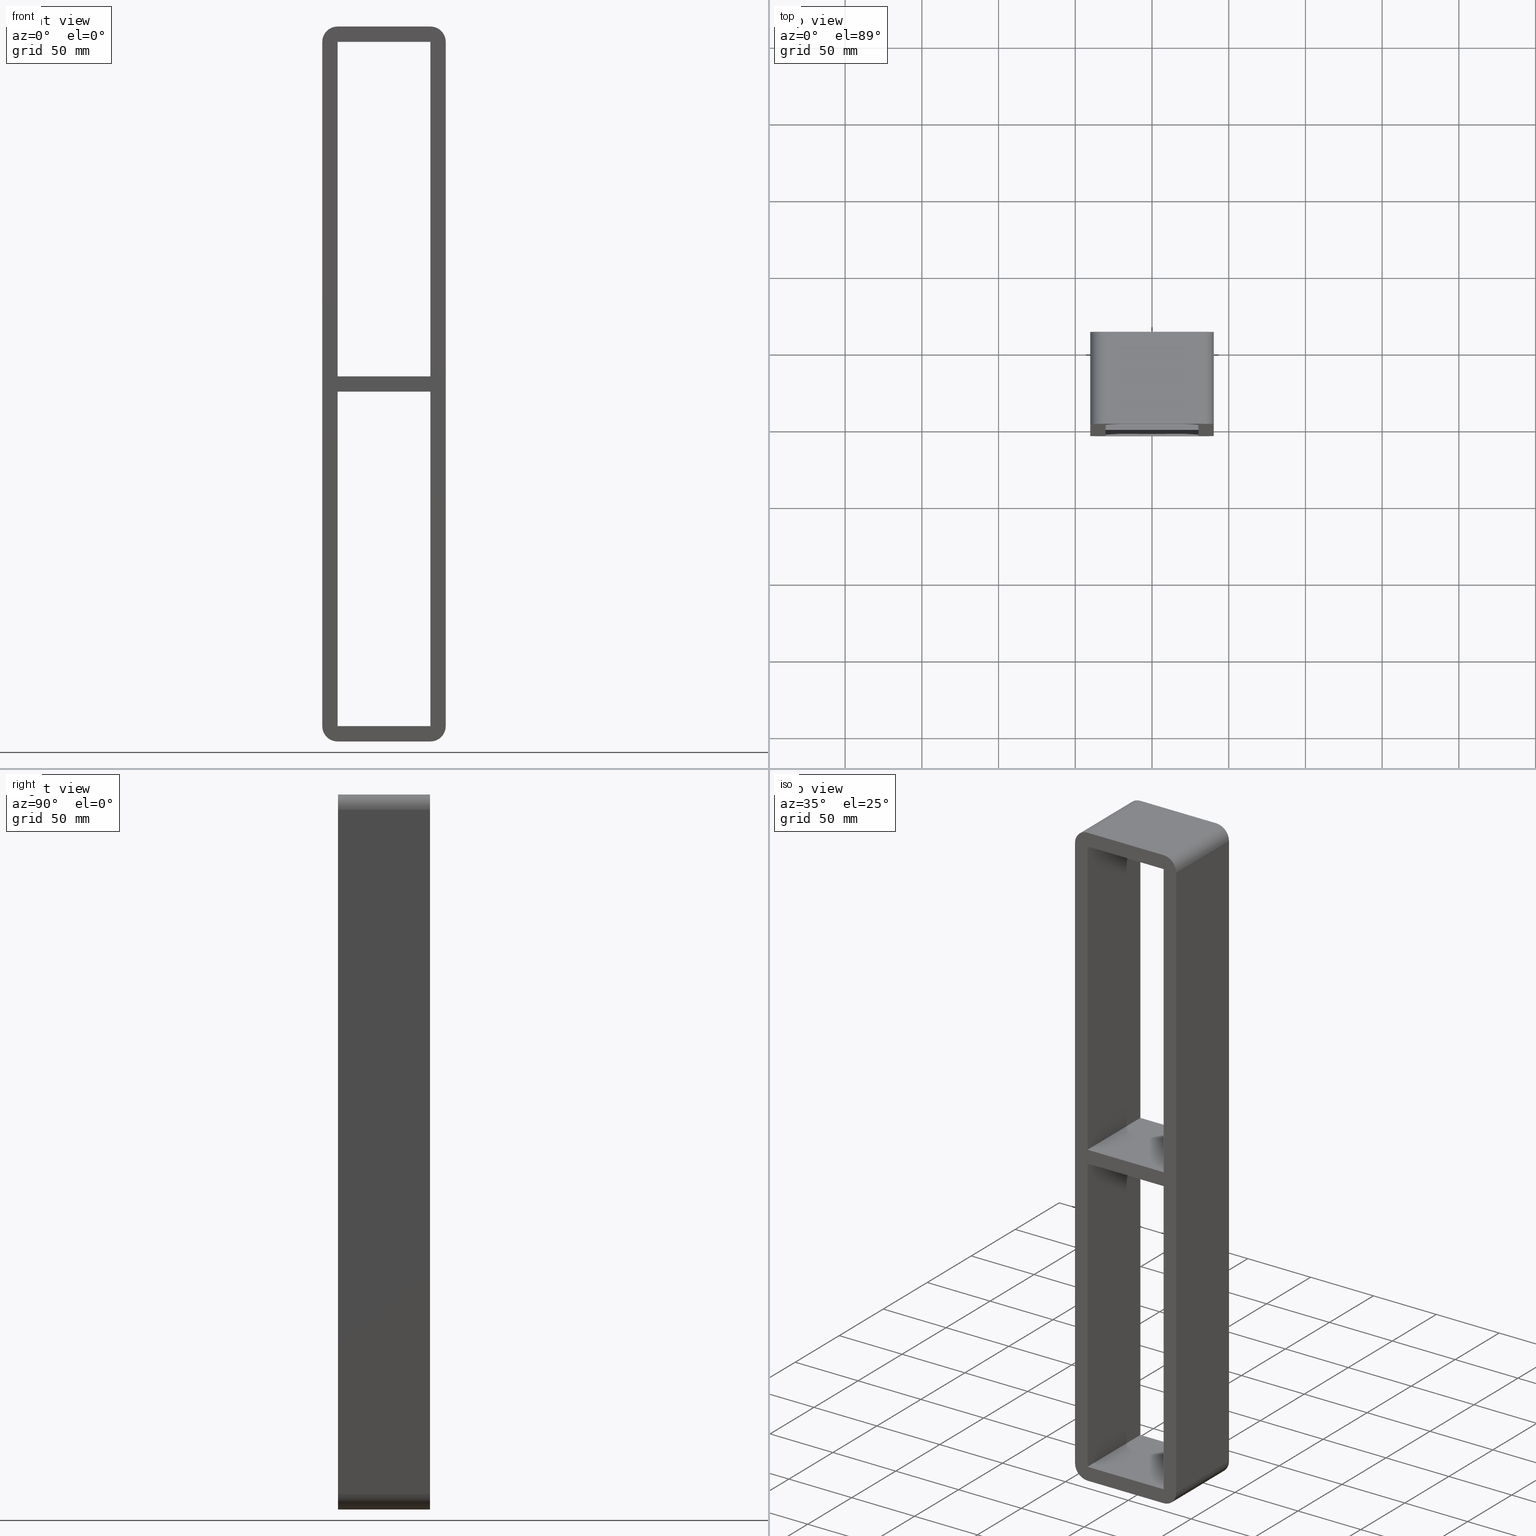
[diagram: canonical four-view strip — front | top / right | iso, engineering-drawing reading convention]
A machine part, canonical four-view strip (front | top / right | iso — engineering-drawing reading convention). The complete STEP part file that produces these views, byte-faithful:
ISO-10303-21;
HEADER;
/****************************************************************
 * Generated by software with PDElib inside                    *
 * PDElib Version v51a, created Wed 11/30/2011                  *
 * ITI Transcendata (http://www.transcendata.com/)              *
 ****************************************************************/
FILE_DESCRIPTION((''),'2;1');
FILE_NAME('C:\\RoxtecConfigurator\\CreatedFiles\\STEP\\S5+5X1.stp','2013-06-28T14:13:56',(''),(''),'Autodesk Inventor 2013','Autodesk Inventor 2013','');
FILE_SCHEMA(('AUTOMOTIVE_DESIGN { 1 0 10303 214 1 1 1 1 }'));
ENDSEC;
DATA;
#5=APPLICATION_CONTEXT('automotive design');
#6=APPLICATION_PROTOCOL_DEFINITION('International Standard','automotive_design',2001,#5);
#7=PRODUCT_CONTEXT('',#5,'mechanical');
#8=PRODUCT('roxtec S_SF_G','roxtec S_SF_G',$,(#7));
#9=PRODUCT_RELATED_PRODUCT_CATEGORY('part',$,(#8));
#10=PRODUCT_DEFINITION_FORMATION('',$,#8);
#11=PRODUCT_DEFINITION_CONTEXT('part definition',#5,'design');
#12=PRODUCT_DEFINITION('',$,#10,#11);
#18=(NAMED_UNIT(*)PLANE_ANGLE_UNIT()SI_UNIT($,.RADIAN.));
#19=DIMENSIONAL_EXPONENTS(0.0,0.0,0.0,0.0,0.0,0.0,0.0);
#20=PLANE_ANGLE_MEASURE_WITH_UNIT(PLANE_ANGLE_MEASURE(0.0174532925),#18);
#24=(CONVERSION_BASED_UNIT('DEGREE',#20)NAMED_UNIT(#19)PLANE_ANGLE_UNIT());
#28=(NAMED_UNIT(*)SI_UNIT($,.STERADIAN.)SOLID_ANGLE_UNIT());
#32=(LENGTH_UNIT()NAMED_UNIT(*)SI_UNIT(.MILLI.,.METRE.));
#34=UNCERTAINTY_MEASURE_WITH_UNIT(LENGTH_MEASURE(0.01),#32,'DISTANCE_ACCURACY_VALUE','');
#36=(GEOMETRIC_REPRESENTATION_CONTEXT(3)GLOBAL_UNCERTAINTY_ASSIGNED_CONTEXT((#34))GLOBAL_UNIT_ASSIGNED_CONTEXT((#24,#28,#32))REPRESENTATION_CONTEXT('None','None'));
#37=AXIS2_PLACEMENT_3D('',#38,#39,#40);
#38=CARTESIAN_POINT('',(0.0,0.0,0.0));
#39=DIRECTION('',(0.0,0.0,1.0));
#40=DIRECTION('',(1.0,0.0,0.0));
#41=SHAPE_REPRESENTATION('',(#37),#36);
#42=PRODUCT_DEFINITION_SHAPE('','',#12);
#43=SHAPE_DEFINITION_REPRESENTATION(#42,#41);
#49=(NAMED_UNIT(*)PLANE_ANGLE_UNIT()SI_UNIT($,.RADIAN.));
#50=DIMENSIONAL_EXPONENTS(0.0,0.0,0.0,0.0,0.0,0.0,0.0);
#51=PLANE_ANGLE_MEASURE_WITH_UNIT(PLANE_ANGLE_MEASURE(0.0174532925),#49);
#55=(CONVERSION_BASED_UNIT('DEGREE',#51)NAMED_UNIT(#50)PLANE_ANGLE_UNIT());
#59=(NAMED_UNIT(*)SI_UNIT($,.STERADIAN.)SOLID_ANGLE_UNIT());
#63=(LENGTH_UNIT()NAMED_UNIT(*)SI_UNIT(.MILLI.,.METRE.));
#65=UNCERTAINTY_MEASURE_WITH_UNIT(LENGTH_MEASURE(0.000001),#63,'DISTANCE_ACCURACY_VALUE','');
#67=(GEOMETRIC_REPRESENTATION_CONTEXT(3)GLOBAL_UNCERTAINTY_ASSIGNED_CONTEXT((#65))GLOBAL_UNIT_ASSIGNED_CONTEXT((#55,#59,#63))REPRESENTATION_CONTEXT('','3D'));
#68=CARTESIAN_POINT('',(30.249999999996362,-3.0,-5.000000000009433));
#69=DIRECTION('',(0.0,0.0,-1.0));
#70=DIRECTION('',(-1.0,0.0,0.0));
#71=AXIS2_PLACEMENT_3D('',#68,#69,#70);
#72=PLANE('',#71);
#73=CARTESIAN_POINT('',(30.249999999996362,-3.0,-5.000000000009433));
#74=VERTEX_POINT('',#73);
#75=CARTESIAN_POINT('',(-30.249999999999687,-3.0,-5.000000000009379));
#76=VERTEX_POINT('',#75);
#77=CARTESIAN_POINT('',(30.249999999996362,-3.0,-5.000000000009433));
#78=DIRECTION('',(-1.0,0.0,0.0));
#79=VECTOR('',#78,60.499999999996049);
#80=LINE('',#77,#79);
#81=EDGE_CURVE('',#74,#76,#80,.T.);
#82=ORIENTED_EDGE('',*,*,#81,.T.);
#83=CARTESIAN_POINT('',(-30.249999999999687,57.0,-5.000000000009379));
#84=VERTEX_POINT('',#83);
#85=CARTESIAN_POINT('',(-30.250000000000004,57.000000000000007,-5.000000000009387));
#86=DIRECTION('',(0.0,-1.0,0.0));
#87=VECTOR('',#86,60.000000000000007);
#88=LINE('',#85,#87);
#89=EDGE_CURVE('',#84,#76,#88,.T.);
#90=ORIENTED_EDGE('',*,*,#89,.F.);
#91=CARTESIAN_POINT('',(30.249999999996362,57.0,-5.000000000009433));
#92=VERTEX_POINT('',#91);
#93=CARTESIAN_POINT('',(30.249999999996362,57.0,-5.000000000009433));
#94=DIRECTION('',(-1.0,0.0,0.0));
#95=VECTOR('',#94,60.499999999996049);
#96=LINE('',#93,#95);
#97=EDGE_CURVE('',#92,#84,#96,.T.);
#98=ORIENTED_EDGE('',*,*,#97,.F.);
#99=CARTESIAN_POINT('',(30.250000000000004,-3.0,-5.00000000000945));
#100=DIRECTION('',(0.0,1.0,0.0));
#101=VECTOR('',#100,60.000000000000007);
#102=LINE('',#99,#101);
#103=EDGE_CURVE('',#74,#92,#102,.T.);
#104=ORIENTED_EDGE('',*,*,#103,.F.);
#105=EDGE_LOOP('',(#82,#90,#98,#104));
#106=FACE_OUTER_BOUND('',#105,.T.);
#107=ADVANCED_FACE('',(#106),#72,.T.);
#108=CARTESIAN_POINT('',(-30.249999999999694,-3.0,5.0));
#109=DIRECTION('',(0.0,0.0,1.0));
#110=DIRECTION('',(1.0,0.0,0.0));
#111=AXIS2_PLACEMENT_3D('',#108,#109,#110);
#112=PLANE('',#111);
#113=CARTESIAN_POINT('',(-30.249999999999694,-3.0,5.0));
#114=VERTEX_POINT('',#113);
#115=CARTESIAN_POINT('',(30.249999999999897,-3.0,5.0));
#116=VERTEX_POINT('',#115);
#117=CARTESIAN_POINT('',(-30.249999999999694,-3.0,5.0));
#118=DIRECTION('',(1.0,0.0,0.0));
#119=VECTOR('',#118,60.499999999999588);
#120=LINE('',#117,#119);
#121=EDGE_CURVE('',#114,#116,#120,.T.);
#122=ORIENTED_EDGE('',*,*,#121,.T.);
#123=CARTESIAN_POINT('',(30.249999999999897,57.0,5.0));
#124=VERTEX_POINT('',#123);
#125=CARTESIAN_POINT('',(30.250000000000004,57.000000000000007,5.0));
#126=DIRECTION('',(0.0,-1.0,0.0));
#127=VECTOR('',#126,60.000000000000007);
#128=LINE('',#125,#127);
#129=EDGE_CURVE('',#124,#116,#128,.T.);
#130=ORIENTED_EDGE('',*,*,#129,.F.);
#131=CARTESIAN_POINT('',(-30.249999999999694,57.0,5.0));
#132=VERTEX_POINT('',#131);
#133=CARTESIAN_POINT('',(-30.249999999999694,57.0,5.0));
#134=DIRECTION('',(1.0,0.0,0.0));
#135=VECTOR('',#134,60.499999999999588);
#136=LINE('',#133,#135);
#137=EDGE_CURVE('',#132,#124,#136,.T.);
#138=ORIENTED_EDGE('',*,*,#137,.F.);
#139=CARTESIAN_POINT('',(-30.250000000000004,-3.0,5.0));
#140=DIRECTION('',(0.0,1.0,0.0));
#141=VECTOR('',#140,60.000000000000007);
#142=LINE('',#139,#141);
#143=EDGE_CURVE('',#114,#132,#142,.T.);
#144=ORIENTED_EDGE('',*,*,#143,.F.);
#145=EDGE_LOOP('',(#122,#130,#138,#144));
#146=FACE_OUTER_BOUND('',#145,.T.);
#147=ADVANCED_FACE('',(#146),#112,.T.);
#148=CARTESIAN_POINT('',(-30.250000000000004,0.0,-223.00000000000006));
#149=DIRECTION('',(-1.0,0.0,0.0));
#150=DIRECTION('',(0.0,0.0,1.0));
#151=AXIS2_PLACEMENT_3D('',#148,#149,#150);
#152=PLANE('',#151);
#153=ORIENTED_EDGE('',*,*,#143,.T.);
#154=CARTESIAN_POINT('',(-30.250000000000004,57.0,223.00000000000006));
#155=VERTEX_POINT('',#154);
#156=CARTESIAN_POINT('',(-30.250000000000004,57.0,223.0));
#157=DIRECTION('',(0.0,0.0,-1.0));
#158=VECTOR('',#157,218.0);
#159=LINE('',#156,#158);
#160=EDGE_CURVE('',#155,#132,#159,.T.);
#161=ORIENTED_EDGE('',*,*,#160,.F.);
#162=CARTESIAN_POINT('',(-30.250000000000004,-3.0,223.00000000000006));
#163=VERTEX_POINT('',#162);
#164=CARTESIAN_POINT('',(-30.250000000000004,-3.0,223.00000000000006));
#165=DIRECTION('',(0.0,1.0,0.0));
#166=VECTOR('',#165,60.0);
#167=LINE('',#164,#166);
#168=EDGE_CURVE('',#163,#155,#167,.T.);
#169=ORIENTED_EDGE('',*,*,#168,.F.);
#170=CARTESIAN_POINT('',(-30.250000000000004,-3.0,5.0));
#171=DIRECTION('',(0.0,0.0,1.0));
#172=VECTOR('',#171,218.0);
#173=LINE('',#170,#172);
#174=EDGE_CURVE('',#114,#163,#173,.T.);
#175=ORIENTED_EDGE('',*,*,#174,.F.);
#176=EDGE_LOOP('',(#153,#161,#169,#175));
#177=FACE_OUTER_BOUND('',#176,.T.);
#178=ADVANCED_FACE('',(#177),#152,.F.);
#179=CARTESIAN_POINT('',(30.250000000000004,0.0,223.00000000000006));
#180=DIRECTION('',(1.0,0.0,0.0));
#181=DIRECTION('',(0.0,0.0,-1.0));
#182=AXIS2_PLACEMENT_3D('',#179,#180,#181);
#183=PLANE('',#182);
#184=ORIENTED_EDGE('',*,*,#103,.T.);
#185=CARTESIAN_POINT('',(30.250000000000004,57.0,-223.00000000000006));
#186=VERTEX_POINT('',#185);
#187=CARTESIAN_POINT('',(30.250000000000004,57.0,-223.00000000000006));
#188=DIRECTION('',(0.0,0.0,1.0));
#189=VECTOR('',#188,217.99999999999062);
#190=LINE('',#187,#189);
#191=EDGE_CURVE('',#186,#92,#190,.T.);
#192=ORIENTED_EDGE('',*,*,#191,.F.);
#193=CARTESIAN_POINT('',(30.250000000000004,-3.0,-223.00000000000006));
#194=VERTEX_POINT('',#193);
#195=CARTESIAN_POINT('',(30.250000000000004,57.0,-223.00000000000006));
#196=DIRECTION('',(0.0,-1.0,0.0));
#197=VECTOR('',#196,60.0);
#198=LINE('',#195,#197);
#199=EDGE_CURVE('',#186,#194,#198,.T.);
#200=ORIENTED_EDGE('',*,*,#199,.T.);
#201=CARTESIAN_POINT('',(30.250000000000004,-3.0,-5.000000000009422));
#202=DIRECTION('',(0.0,0.0,-1.0));
#203=VECTOR('',#202,217.99999999999062);
#204=LINE('',#201,#203);
#205=EDGE_CURVE('',#74,#194,#204,.T.);
#206=ORIENTED_EDGE('',*,*,#205,.F.);
#207=EDGE_LOOP('',(#184,#192,#200,#206));
#208=FACE_OUTER_BOUND('',#207,.T.);
#209=ADVANCED_FACE('',(#208),#183,.F.);
#210=CARTESIAN_POINT('',(30.250000000000004,0.0,223.00000000000006));
#211=DIRECTION('',(1.0,0.0,0.0));
#212=DIRECTION('',(0.0,0.0,-1.0));
#213=AXIS2_PLACEMENT_3D('',#210,#211,#212);
#214=PLANE('',#213);
#215=ORIENTED_EDGE('',*,*,#129,.T.);
#216=CARTESIAN_POINT('',(30.250000000000004,-3.0,223.00000000000006));
#217=VERTEX_POINT('',#216);
#218=CARTESIAN_POINT('',(30.250000000000004,-3.0,223.00000000000006));
#219=DIRECTION('',(0.0,0.0,-1.0));
#220=VECTOR('',#219,218.00000000000006);
#221=LINE('',#218,#220);
#222=EDGE_CURVE('',#217,#116,#221,.T.);
#223=ORIENTED_EDGE('',*,*,#222,.F.);
#224=CARTESIAN_POINT('',(30.250000000000004,57.0,223.00000000000006));
#225=VERTEX_POINT('',#224);
#226=CARTESIAN_POINT('',(30.250000000000004,-3.0,223.00000000000006));
#227=DIRECTION('',(0.0,1.0,0.0));
#228=VECTOR('',#227,60.0);
#229=LINE('',#226,#228);
#230=EDGE_CURVE('',#217,#225,#229,.T.);
#231=ORIENTED_EDGE('',*,*,#230,.T.);
#232=CARTESIAN_POINT('',(30.250000000000004,57.0,5.0));
#233=DIRECTION('',(0.0,0.0,1.0));
#234=VECTOR('',#233,218.00000000000006);
#235=LINE('',#232,#234);
#236=EDGE_CURVE('',#124,#225,#235,.T.);
#237=ORIENTED_EDGE('',*,*,#236,.F.);
#238=EDGE_LOOP('',(#215,#223,#231,#237));
#239=FACE_OUTER_BOUND('',#238,.T.);
#240=ADVANCED_FACE('',(#239),#214,.F.);
#241=CARTESIAN_POINT('',(30.250000000000004,0.0,-222.99999999999997));
#242=DIRECTION('',(0.0,1.0,0.0));
#243=DIRECTION('',(0.707106781186547,0.0,-0.707106781186547));
#244=AXIS2_PLACEMENT_3D('',#241,#242,#243);
#245=CYLINDRICAL_SURFACE('',#244,10.0);
#246=CARTESIAN_POINT('',(30.250000000000004,57.0,-232.99999999999997));
#247=VERTEX_POINT('',#246);
#248=CARTESIAN_POINT('',(40.25,57.0,-222.99999999999997));
#249=VERTEX_POINT('',#248);
#250=CARTESIAN_POINT('',(30.250000000000004,57.0,-222.99999999999997));
#251=DIRECTION('',(0.0,-1.0,0.0));
#252=DIRECTION('',(0.707106781186547,0.0,-0.707106781186547));
#253=AXIS2_PLACEMENT_3D('',#250,#251,#252);
#254=CIRCLE('',#253,9.999999999999998);
#255=EDGE_CURVE('',#247,#249,#254,.T.);
#256=ORIENTED_EDGE('',*,*,#255,.T.);
#257=CARTESIAN_POINT('',(40.25,-3.0,-222.99999999999997));
#258=VERTEX_POINT('',#257);
#259=CARTESIAN_POINT('',(40.25,57.0,-222.99999999999997));
#260=DIRECTION('',(0.0,-1.0,0.0));
#261=VECTOR('',#260,60.0);
#262=LINE('',#259,#261);
#263=EDGE_CURVE('',#249,#258,#262,.T.);
#264=ORIENTED_EDGE('',*,*,#263,.T.);
#265=CARTESIAN_POINT('',(30.250000000000004,-3.0,-232.99999999999997));
#266=VERTEX_POINT('',#265);
#267=CARTESIAN_POINT('',(30.250000000000004,-3.0,-222.99999999999997));
#268=DIRECTION('',(0.0,1.0,0.0));
#269=DIRECTION('',(0.707106781186547,0.0,-0.707106781186547));
#270=AXIS2_PLACEMENT_3D('',#267,#268,#269);
#271=CIRCLE('',#270,9.999999999999998);
#272=EDGE_CURVE('',#258,#266,#271,.T.);
#273=ORIENTED_EDGE('',*,*,#272,.T.);
#274=CARTESIAN_POINT('',(30.250000000000004,-3.0,-232.99999999999997));
#275=DIRECTION('',(0.0,1.0,0.0));
#276=VECTOR('',#275,60.0);
#277=LINE('',#274,#276);
#278=EDGE_CURVE('',#266,#247,#277,.T.);
#279=ORIENTED_EDGE('',*,*,#278,.T.);
#280=EDGE_LOOP('',(#256,#264,#273,#279));
#281=FACE_OUTER_BOUND('',#280,.T.);
#282=ADVANCED_FACE('',(#281),#245,.T.);
#283=CARTESIAN_POINT('',(0.0,-3.0,3.510458E-014));
#284=DIRECTION('',(0.0,1.0,0.0));
#285=DIRECTION('',(0.0,0.0,1.0));
#286=AXIS2_PLACEMENT_3D('',#283,#284,#285);
#287=PLANE('',#286);
#288=ORIENTED_EDGE('',*,*,#272,.F.);
#289=CARTESIAN_POINT('',(40.25,-3.0,223.00000000000006));
#290=VERTEX_POINT('',#289);
#291=CARTESIAN_POINT('',(40.25,-3.0,-222.99999999999994));
#292=DIRECTION('',(0.0,0.0,1.0));
#293=VECTOR('',#292,446.0);
#294=LINE('',#291,#293);
#295=EDGE_CURVE('',#258,#290,#294,.T.);
#296=ORIENTED_EDGE('',*,*,#295,.T.);
#297=CARTESIAN_POINT('',(30.250000000000004,-3.0,233.00000000000006));
#298=VERTEX_POINT('',#297);
#299=CARTESIAN_POINT('',(30.250000000000004,-3.0,223.00000000000006));
#300=DIRECTION('',(0.0,1.0,0.0));
#301=DIRECTION('',(0.707106781186547,0.0,0.707106781186547));
#302=AXIS2_PLACEMENT_3D('',#299,#300,#301);
#303=CIRCLE('',#302,9.999999999999998);
#304=EDGE_CURVE('',#298,#290,#303,.T.);
#305=ORIENTED_EDGE('',*,*,#304,.F.);
#306=CARTESIAN_POINT('',(-30.250000000000004,-3.0,233.00000000000006));
#307=VERTEX_POINT('',#306);
#308=CARTESIAN_POINT('',(30.25,-3.0,233.00000000000006));
#309=DIRECTION('',(-1.0,0.0,0.0));
#310=VECTOR('',#309,60.5);
#311=LINE('',#308,#310);
#312=EDGE_CURVE('',#298,#307,#311,.T.);
#313=ORIENTED_EDGE('',*,*,#312,.T.);
#314=CARTESIAN_POINT('',(-40.25,-3.0,223.00000000000006));
#315=VERTEX_POINT('',#314);
#316=CARTESIAN_POINT('',(-30.250000000000004,-3.0,223.00000000000006));
#317=DIRECTION('',(0.0,1.0,0.0));
#318=DIRECTION('',(-0.707106781186547,0.0,0.707106781186547));
#319=AXIS2_PLACEMENT_3D('',#316,#317,#318);
#320=CIRCLE('',#319,9.999999999999998);
#321=EDGE_CURVE('',#315,#307,#320,.T.);
#322=ORIENTED_EDGE('',*,*,#321,.F.);
#323=CARTESIAN_POINT('',(-40.25,-3.0,-222.99999999999997));
#324=VERTEX_POINT('',#323);
#325=CARTESIAN_POINT('',(-40.25,-3.0,223.00000000000003));
#326=DIRECTION('',(0.0,0.0,-1.0));
#327=VECTOR('',#326,446.0);
#328=LINE('',#325,#327);
#329=EDGE_CURVE('',#315,#324,#328,.T.);
#330=ORIENTED_EDGE('',*,*,#329,.T.);
#331=CARTESIAN_POINT('',(-30.250000000000004,-3.0,-232.99999999999997));
#332=VERTEX_POINT('',#331);
#333=CARTESIAN_POINT('',(-30.250000000000004,-3.0,-222.99999999999997));
#334=DIRECTION('',(0.0,1.0,0.0));
#335=DIRECTION('',(-0.707106781186547,0.0,-0.707106781186547));
#336=AXIS2_PLACEMENT_3D('',#333,#334,#335);
#337=CIRCLE('',#336,9.999999999999998);
#338=EDGE_CURVE('',#332,#324,#337,.T.);
#339=ORIENTED_EDGE('',*,*,#338,.F.);
#340=CARTESIAN_POINT('',(-30.25,-3.0,-232.99999999999997));
#341=DIRECTION('',(1.0,0.0,0.0));
#342=VECTOR('',#341,60.5);
#343=LINE('',#340,#342);
#344=EDGE_CURVE('',#332,#266,#343,.T.);
#345=ORIENTED_EDGE('',*,*,#344,.T.);
#346=EDGE_LOOP('',(#288,#296,#305,#313,#322,#330,#339,#345));
#347=FACE_OUTER_BOUND('',#346,.T.);
#348=ORIENTED_EDGE('',*,*,#174,.T.);
#349=CARTESIAN_POINT('',(-30.250000000000004,-3.0,223.00000000000006));
#350=DIRECTION('',(1.0,0.0,0.0));
#351=VECTOR('',#350,60.500000000000014);
#352=LINE('',#349,#351);
#353=EDGE_CURVE('',#163,#217,#352,.T.);
#354=ORIENTED_EDGE('',*,*,#353,.T.);
#355=ORIENTED_EDGE('',*,*,#222,.T.);
#356=ORIENTED_EDGE('',*,*,#121,.F.);
#357=EDGE_LOOP('',(#348,#354,#355,#356));
#358=FACE_BOUND('',#357,.T.);
#359=ORIENTED_EDGE('',*,*,#81,.F.);
#360=ORIENTED_EDGE('',*,*,#205,.T.);
#361=CARTESIAN_POINT('',(-30.250000000000004,-3.0,-223.00000000000006));
#362=VERTEX_POINT('',#361);
#363=CARTESIAN_POINT('',(30.250000000000004,-3.0,-223.00000000000006));
#364=DIRECTION('',(-1.0,0.0,0.0));
#365=VECTOR('',#364,60.500000000000014);
#366=LINE('',#363,#365);
#367=EDGE_CURVE('',#194,#362,#366,.T.);
#368=ORIENTED_EDGE('',*,*,#367,.T.);
#369=CARTESIAN_POINT('',(-30.250000000000004,-3.0,-223.00000000000006));
#370=DIRECTION('',(0.0,0.0,1.0));
#371=VECTOR('',#370,217.99999999999068);
#372=LINE('',#369,#371);
#373=EDGE_CURVE('',#362,#76,#372,.T.);
#374=ORIENTED_EDGE('',*,*,#373,.T.);
#375=EDGE_LOOP('',(#359,#360,#368,#374));
#376=FACE_BOUND('',#375,.T.);
#377=ADVANCED_FACE('',(#347,#358,#376),#287,.F.);
#378=CARTESIAN_POINT('',(40.25,0.0,233.00000000000006));
#379=DIRECTION('',(1.0,0.0,0.0));
#380=DIRECTION('',(0.0,0.0,-1.0));
#381=AXIS2_PLACEMENT_3D('',#378,#379,#380);
#382=PLANE('',#381);
#383=ORIENTED_EDGE('',*,*,#263,.F.);
#384=CARTESIAN_POINT('',(40.25,57.0,223.00000000000006));
#385=VERTEX_POINT('',#384);
#386=CARTESIAN_POINT('',(40.25,57.0,223.00000000000006));
#387=DIRECTION('',(0.0,0.0,-1.0));
#388=VECTOR('',#387,446.0);
#389=LINE('',#386,#388);
#390=EDGE_CURVE('',#385,#249,#389,.T.);
#391=ORIENTED_EDGE('',*,*,#390,.F.);
#392=CARTESIAN_POINT('',(40.25,-3.0,223.00000000000006));
#393=DIRECTION('',(0.0,1.0,0.0));
#394=VECTOR('',#393,60.0);
#395=LINE('',#392,#394);
#396=EDGE_CURVE('',#290,#385,#395,.T.);
#397=ORIENTED_EDGE('',*,*,#396,.F.);
#398=ORIENTED_EDGE('',*,*,#295,.F.);
#399=EDGE_LOOP('',(#383,#391,#397,#398));
#400=FACE_OUTER_BOUND('',#399,.T.);
#401=ADVANCED_FACE('',(#400),#382,.T.);
#402=CARTESIAN_POINT('',(30.250000000000004,0.0,223.00000000000006));
#403=DIRECTION('',(0.0,-1.0,0.0));
#404=DIRECTION('',(0.707106781186547,0.0,0.707106781186547));
#405=AXIS2_PLACEMENT_3D('',#402,#403,#404);
#406=CYLINDRICAL_SURFACE('',#405,10.0);
#407=ORIENTED_EDGE('',*,*,#304,.T.);
#408=ORIENTED_EDGE('',*,*,#396,.T.);
#409=CARTESIAN_POINT('',(30.250000000000004,57.0,233.00000000000006));
#410=VERTEX_POINT('',#409);
#411=CARTESIAN_POINT('',(30.250000000000004,57.0,223.00000000000006));
#412=DIRECTION('',(0.0,-1.0,0.0));
#413=DIRECTION('',(0.707106781186547,0.0,0.707106781186547));
#414=AXIS2_PLACEMENT_3D('',#411,#412,#413);
#415=CIRCLE('',#414,9.999999999999998);
#416=EDGE_CURVE('',#385,#410,#415,.T.);
#417=ORIENTED_EDGE('',*,*,#416,.T.);
#418=CARTESIAN_POINT('',(30.250000000000004,57.0,233.00000000000006));
#419=DIRECTION('',(0.0,-1.0,0.0));
#420=VECTOR('',#419,60.0);
#421=LINE('',#418,#420);
#422=EDGE_CURVE('',#410,#298,#421,.T.);
#423=ORIENTED_EDGE('',*,*,#422,.T.);
#424=EDGE_LOOP('',(#407,#408,#417,#423));
#425=FACE_OUTER_BOUND('',#424,.T.);
#426=ADVANCED_FACE('',(#425),#406,.T.);
#427=CARTESIAN_POINT('',(-30.250000000000004,0.0,-222.99999999999997));
#428=DIRECTION('',(0.0,1.0,0.0));
#429=DIRECTION('',(-0.707106781186547,0.0,-0.707106781186547));
#430=AXIS2_PLACEMENT_3D('',#427,#428,#429);
#431=CYLINDRICAL_SURFACE('',#430,10.0);
#432=CARTESIAN_POINT('',(-40.25,57.0,-222.99999999999997));
#433=VERTEX_POINT('',#432);
#434=CARTESIAN_POINT('',(-30.250000000000004,57.0,-232.99999999999997));
#435=VERTEX_POINT('',#434);
#436=CARTESIAN_POINT('',(-30.250000000000004,57.0,-222.99999999999997));
#437=DIRECTION('',(0.0,-1.0,0.0));
#438=DIRECTION('',(-0.707106781186547,0.0,-0.707106781186547));
#439=AXIS2_PLACEMENT_3D('',#436,#437,#438);
#440=CIRCLE('',#439,9.999999999999998);
#441=EDGE_CURVE('',#433,#435,#440,.T.);
#442=ORIENTED_EDGE('',*,*,#441,.T.);
#443=CARTESIAN_POINT('',(-30.250000000000004,57.0,-232.99999999999997));
#444=DIRECTION('',(0.0,-1.0,0.0));
#445=VECTOR('',#444,60.0);
#446=LINE('',#443,#445);
#447=EDGE_CURVE('',#435,#332,#446,.T.);
#448=ORIENTED_EDGE('',*,*,#447,.T.);
#449=ORIENTED_EDGE('',*,*,#338,.T.);
#450=CARTESIAN_POINT('',(-40.25,-3.0,-222.99999999999997));
#451=DIRECTION('',(0.0,1.0,0.0));
#452=VECTOR('',#451,60.0);
#453=LINE('',#450,#452);
#454=EDGE_CURVE('',#324,#433,#453,.T.);
#455=ORIENTED_EDGE('',*,*,#454,.T.);
#456=EDGE_LOOP('',(#442,#448,#449,#455));
#457=FACE_OUTER_BOUND('',#456,.T.);
#458=ADVANCED_FACE('',(#457),#431,.T.);
#459=CARTESIAN_POINT('',(-40.25,0.0,-232.99999999999997));
#460=DIRECTION('',(-1.0,0.0,0.0));
#461=DIRECTION('',(0.0,0.0,1.0));
#462=AXIS2_PLACEMENT_3D('',#459,#460,#461);
#463=PLANE('',#462);
#464=ORIENTED_EDGE('',*,*,#454,.F.);
#465=ORIENTED_EDGE('',*,*,#329,.F.);
#466=CARTESIAN_POINT('',(-40.25,57.0,223.00000000000006));
#467=VERTEX_POINT('',#466);
#468=CARTESIAN_POINT('',(-40.25,57.0,223.00000000000006));
#469=DIRECTION('',(0.0,-1.0,0.0));
#470=VECTOR('',#469,60.0);
#471=LINE('',#468,#470);
#472=EDGE_CURVE('',#467,#315,#471,.T.);
#473=ORIENTED_EDGE('',*,*,#472,.F.);
#474=CARTESIAN_POINT('',(-40.25,57.0,-222.99999999999997));
#475=DIRECTION('',(0.0,0.0,1.0));
#476=VECTOR('',#475,446.0);
#477=LINE('',#474,#476);
#478=EDGE_CURVE('',#433,#467,#477,.T.);
#479=ORIENTED_EDGE('',*,*,#478,.F.);
#480=EDGE_LOOP('',(#464,#465,#473,#479));
#481=FACE_OUTER_BOUND('',#480,.T.);
#482=ADVANCED_FACE('',(#481),#463,.T.);
#483=CARTESIAN_POINT('',(-30.250000000000004,0.0,223.00000000000006));
#484=DIRECTION('',(0.0,1.0,0.0));
#485=DIRECTION('',(-0.707106781186547,0.0,0.707106781186547));
#486=AXIS2_PLACEMENT_3D('',#483,#484,#485);
#487=CYLINDRICAL_SURFACE('',#486,10.0);
#488=CARTESIAN_POINT('',(-30.250000000000004,57.0,233.00000000000006));
#489=VERTEX_POINT('',#488);
#490=CARTESIAN_POINT('',(-30.250000000000004,57.0,223.00000000000006));
#491=DIRECTION('',(0.0,-1.0,0.0));
#492=DIRECTION('',(-0.707106781186547,0.0,0.707106781186547));
#493=AXIS2_PLACEMENT_3D('',#490,#491,#492);
#494=CIRCLE('',#493,9.999999999999998);
#495=EDGE_CURVE('',#489,#467,#494,.T.);
#496=ORIENTED_EDGE('',*,*,#495,.T.);
#497=ORIENTED_EDGE('',*,*,#472,.T.);
#498=ORIENTED_EDGE('',*,*,#321,.T.);
#499=CARTESIAN_POINT('',(-30.250000000000004,-3.0,233.00000000000006));
#500=DIRECTION('',(0.0,1.0,0.0));
#501=VECTOR('',#500,60.0);
#502=LINE('',#499,#501);
#503=EDGE_CURVE('',#307,#489,#502,.T.);
#504=ORIENTED_EDGE('',*,*,#503,.T.);
#505=EDGE_LOOP('',(#496,#497,#498,#504));
#506=FACE_OUTER_BOUND('',#505,.T.);
#507=ADVANCED_FACE('',(#506),#487,.T.);
#508=CARTESIAN_POINT('',(-40.25,0.0,233.00000000000006));
#509=DIRECTION('',(0.0,0.0,1.0));
#510=DIRECTION('',(1.0,0.0,0.0));
#511=AXIS2_PLACEMENT_3D('',#508,#509,#510);
#512=PLANE('',#511);
#513=ORIENTED_EDGE('',*,*,#422,.F.);
#514=CARTESIAN_POINT('',(-30.25,57.0,233.00000000000006));
#515=DIRECTION('',(1.0,0.0,0.0));
#516=VECTOR('',#515,60.5);
#517=LINE('',#514,#516);
#518=EDGE_CURVE('',#489,#410,#517,.T.);
#519=ORIENTED_EDGE('',*,*,#518,.F.);
#520=ORIENTED_EDGE('',*,*,#503,.F.);
#521=ORIENTED_EDGE('',*,*,#312,.F.);
#522=EDGE_LOOP('',(#513,#519,#520,#521));
#523=FACE_OUTER_BOUND('',#522,.T.);
#524=ADVANCED_FACE('',(#523),#512,.T.);
#525=CARTESIAN_POINT('',(-30.250000000000004,0.0,223.00000000000006));
#526=DIRECTION('',(0.0,0.0,1.0));
#527=DIRECTION('',(1.0,0.0,0.0));
#528=AXIS2_PLACEMENT_3D('',#525,#526,#527);
#529=PLANE('',#528);
#530=ORIENTED_EDGE('',*,*,#230,.F.);
#531=ORIENTED_EDGE('',*,*,#353,.F.);
#532=ORIENTED_EDGE('',*,*,#168,.T.);
#533=CARTESIAN_POINT('',(30.250000000000007,57.0,223.00000000000006));
#534=DIRECTION('',(-1.0,0.0,0.0));
#535=VECTOR('',#534,60.500000000000014);
#536=LINE('',#533,#535);
#537=EDGE_CURVE('',#225,#155,#536,.T.);
#538=ORIENTED_EDGE('',*,*,#537,.F.);
#539=EDGE_LOOP('',(#530,#531,#532,#538));
#540=FACE_OUTER_BOUND('',#539,.T.);
#541=ADVANCED_FACE('',(#540),#529,.F.);
#542=CARTESIAN_POINT('',(-30.250000000000004,0.0,-223.00000000000006));
#543=DIRECTION('',(-1.0,0.0,0.0));
#544=DIRECTION('',(0.0,0.0,1.0));
#545=AXIS2_PLACEMENT_3D('',#542,#543,#544);
#546=PLANE('',#545);
#547=ORIENTED_EDGE('',*,*,#89,.T.);
#548=ORIENTED_EDGE('',*,*,#373,.F.);
#549=CARTESIAN_POINT('',(-30.250000000000004,57.0,-223.00000000000006));
#550=VERTEX_POINT('',#549);
#551=CARTESIAN_POINT('',(-30.250000000000004,-3.0,-223.00000000000006));
#552=DIRECTION('',(0.0,1.0,0.0));
#553=VECTOR('',#552,60.0);
#554=LINE('',#551,#553);
#555=EDGE_CURVE('',#362,#550,#554,.T.);
#556=ORIENTED_EDGE('',*,*,#555,.T.);
#557=CARTESIAN_POINT('',(-30.250000000000004,57.0,-5.000000000009379));
#558=DIRECTION('',(0.0,0.0,-1.0));
#559=VECTOR('',#558,217.99999999999068);
#560=LINE('',#557,#559);
#561=EDGE_CURVE('',#84,#550,#560,.T.);
#562=ORIENTED_EDGE('',*,*,#561,.F.);
#563=EDGE_LOOP('',(#547,#548,#556,#562));
#564=FACE_OUTER_BOUND('',#563,.T.);
#565=ADVANCED_FACE('',(#564),#546,.F.);
#566=CARTESIAN_POINT('',(30.250000000000004,0.0,-223.00000000000006));
#567=DIRECTION('',(0.0,0.0,-1.0));
#568=DIRECTION('',(-1.0,0.0,0.0));
#569=AXIS2_PLACEMENT_3D('',#566,#567,#568);
#570=PLANE('',#569);
#571=ORIENTED_EDGE('',*,*,#555,.F.);
#572=ORIENTED_EDGE('',*,*,#367,.F.);
#573=ORIENTED_EDGE('',*,*,#199,.F.);
#574=CARTESIAN_POINT('',(-30.250000000000007,57.0,-223.00000000000006));
#575=DIRECTION('',(1.0,0.0,0.0));
#576=VECTOR('',#575,60.500000000000014);
#577=LINE('',#574,#576);
#578=EDGE_CURVE('',#550,#186,#577,.T.);
#579=ORIENTED_EDGE('',*,*,#578,.F.);
#580=EDGE_LOOP('',(#571,#572,#573,#579));
#581=FACE_OUTER_BOUND('',#580,.T.);
#582=ADVANCED_FACE('',(#581),#570,.F.);
#583=CARTESIAN_POINT('',(40.25,0.0,-232.99999999999997));
#584=DIRECTION('',(0.0,0.0,-1.0));
#585=DIRECTION('',(-1.0,0.0,0.0));
#586=AXIS2_PLACEMENT_3D('',#583,#584,#585);
#587=PLANE('',#586);
#588=ORIENTED_EDGE('',*,*,#278,.F.);
#589=ORIENTED_EDGE('',*,*,#344,.F.);
#590=ORIENTED_EDGE('',*,*,#447,.F.);
#591=CARTESIAN_POINT('',(30.25,57.0,-232.99999999999997));
#592=DIRECTION('',(-1.0,0.0,0.0));
#593=VECTOR('',#592,60.5);
#594=LINE('',#591,#593);
#595=EDGE_CURVE('',#247,#435,#594,.T.);
#596=ORIENTED_EDGE('',*,*,#595,.F.);
#597=EDGE_LOOP('',(#588,#589,#590,#596));
#598=FACE_OUTER_BOUND('',#597,.T.);
#599=ADVANCED_FACE('',(#598),#587,.T.);
#600=CARTESIAN_POINT('',(0.0,57.0,3.510458E-014));
#601=DIRECTION('',(0.0,1.0,0.0));
#602=DIRECTION('',(0.0,0.0,1.0));
#603=AXIS2_PLACEMENT_3D('',#600,#601,#602);
#604=PLANE('',#603);
#605=ORIENTED_EDGE('',*,*,#255,.F.);
#606=ORIENTED_EDGE('',*,*,#595,.T.);
#607=ORIENTED_EDGE('',*,*,#441,.F.);
#608=ORIENTED_EDGE('',*,*,#478,.T.);
#609=ORIENTED_EDGE('',*,*,#495,.F.);
#610=ORIENTED_EDGE('',*,*,#518,.T.);
#611=ORIENTED_EDGE('',*,*,#416,.F.);
#612=ORIENTED_EDGE('',*,*,#390,.T.);
#613=EDGE_LOOP('',(#605,#606,#607,#608,#609,#610,#611,#612));
#614=FACE_OUTER_BOUND('',#613,.T.);
#615=ORIENTED_EDGE('',*,*,#561,.T.);
#616=ORIENTED_EDGE('',*,*,#578,.T.);
#617=ORIENTED_EDGE('',*,*,#191,.T.);
#618=ORIENTED_EDGE('',*,*,#97,.T.);
#619=EDGE_LOOP('',(#615,#616,#617,#618));
#620=FACE_BOUND('',#619,.T.);
#621=ORIENTED_EDGE('',*,*,#137,.T.);
#622=ORIENTED_EDGE('',*,*,#236,.T.);
#623=ORIENTED_EDGE('',*,*,#537,.T.);
#624=ORIENTED_EDGE('',*,*,#160,.T.);
#625=EDGE_LOOP('',(#621,#622,#623,#624));
#626=FACE_BOUND('',#625,.T.);
#627=ADVANCED_FACE('',(#614,#620,#626),#604,.T.);
#628=CLOSED_SHELL('',(#107,#147,#178,#209,#240,#282,#377,#401,#426,#458,#482,#507,#524,#541,#565,#582,#599,#627));
#629=MANIFOLD_SOLID_BREP('Solid1',#628);
#630=COLOUR_RGB('Silicon Nitride - Polished',0.800000011920929,0.796078443527222,0.701960802078247);
#631=FILL_AREA_STYLE_COLOUR('Silicon Nitride - Polished',#630);
#632=FILL_AREA_STYLE('Silicon Nitride - Polished',(#631));
#633=SURFACE_STYLE_FILL_AREA(#632);
#634=SURFACE_SIDE_STYLE('Silicon Nitride - Polished',(#633));
#635=SURFACE_STYLE_USAGE(.BOTH.,#634);
#636=PRESENTATION_STYLE_ASSIGNMENT((#635));
#637=STYLED_ITEM('',(#636),#629);
#638=MECHANICAL_DESIGN_GEOMETRIC_PRESENTATION_REPRESENTATION('',(#637),#36);
#639=ADVANCED_BREP_SHAPE_REPRESENTATION('ABSR',(#629),#36);
#640=SHAPE_REPRESENTATION_RELATIONSHIP('SRR','None',#639,#41);
ENDSEC;
END-ISO-10303-21;
